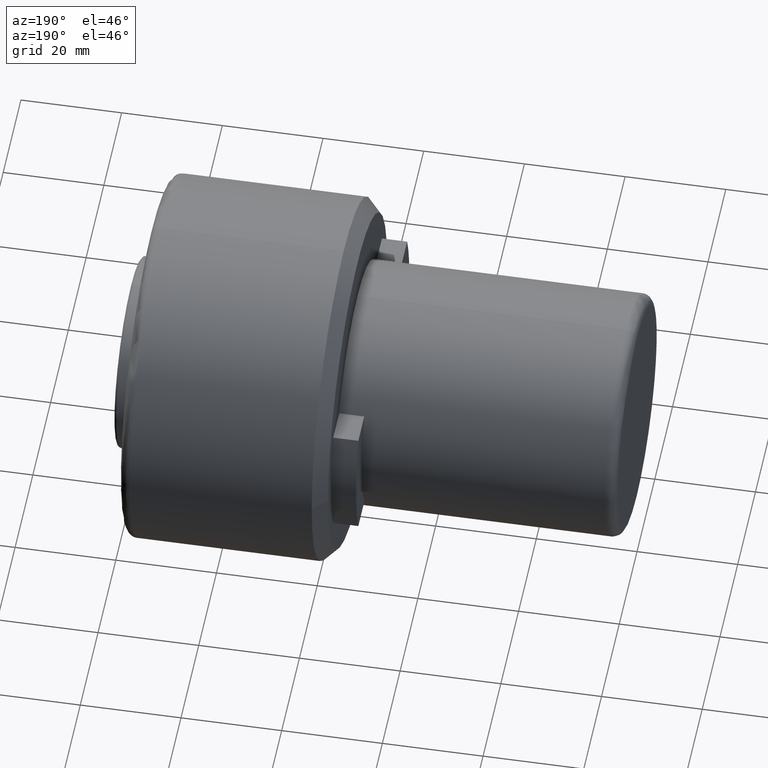
[diagram: clean part render]
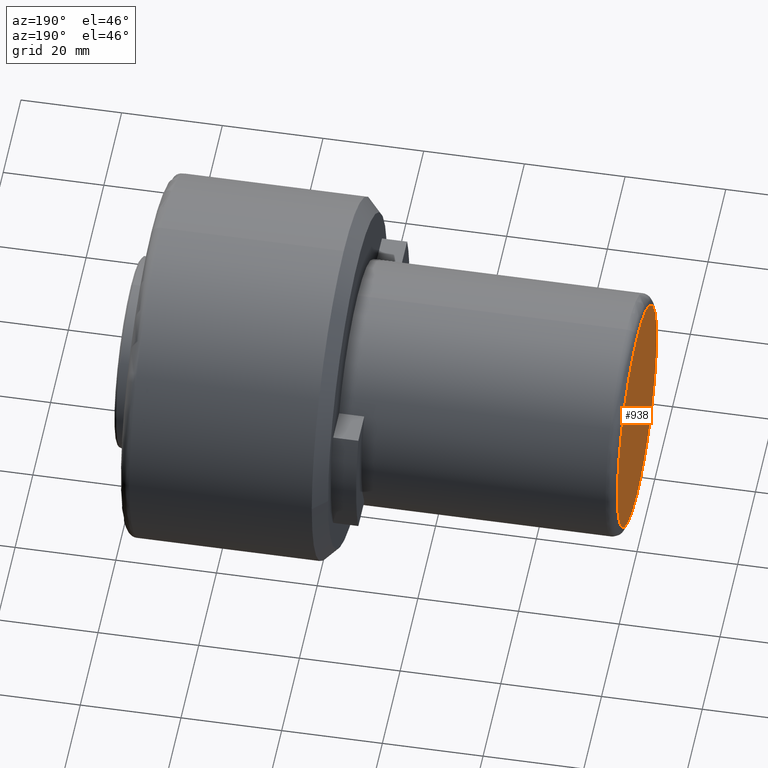
[diagram: same view with one face highlighted and labeled with its STEP entity id]
A machine part, auxiliary view. The second image highlights one B-rep face of the part: STEP entity #938.
In plain terms, the highlighted planar face has unit normal (-1, 0, 0).
Its self-contained STEP definition (entity closure, byte-faithful):
#167 = VERTEX_POINT ( 'NONE', #778 ) ;
#187 = CARTESIAN_POINT ( 'NONE',  ( 0.0000000000000000000, 0.0000000000000000000, -7.733975497063264400E-015 ) ) ;
#223 = DIRECTION ( 'NONE',  ( -1.000000000000000000, 0.0000000000000000000, 0.0000000000000000000 ) ) ;
#247 = EDGE_LOOP ( 'NONE', ( #1063, #455 ) ) ;
#288 = DIRECTION ( 'NONE',  ( 0.0000000000000000000, 0.0000000000000000000, 1.000000000000000000 ) ) ;
#292 = CIRCLE ( 'NONE', #1216, 22.00000000000000000 ) ;
#311 = AXIS2_PLACEMENT_3D ( 'NONE', #187, #944, #288 ) ;
#455 = ORIENTED_EDGE ( 'NONE', *, *, #898, .T. ) ;
#520 = FACE_OUTER_BOUND ( 'NONE', #247, .T. ) ;
#628 = PLANE ( 'NONE',  #644 ) ;
#644 = AXIS2_PLACEMENT_3D ( 'NONE', #1375, #1380, #734 ) ;
#734 = DIRECTION ( 'NONE',  ( 0.0000000000000000000, 0.0000000000000000000, 1.000000000000000000 ) ) ;
#778 = CARTESIAN_POINT ( 'NONE',  ( 0.0000000000000000000, 2.816687638038912400E-015, -22.00000000000000700 ) ) ;
#867 = CARTESIAN_POINT ( 'NONE',  ( 0.0000000000000000000, 0.0000000000000000000, -7.733975497063264400E-015 ) ) ;
#878 = CARTESIAN_POINT ( 'NONE',  ( 0.0000000000000000000, 0.0000000000000000000, 21.99999999999999300 ) ) ;
#898 = EDGE_CURVE ( 'NONE', #167, #1308, #1042, .T. ) ;
#938 = ADVANCED_FACE ( 'NONE', ( #520 ), #628, .T. ) ;
#944 = DIRECTION ( 'NONE',  ( -1.000000000000000000, 0.0000000000000000000, 0.0000000000000000000 ) ) ;
#976 = DIRECTION ( 'NONE',  ( 0.0000000000000000000, 0.0000000000000000000, 1.000000000000000000 ) ) ;
#1042 = CIRCLE ( 'NONE', #311, 22.00000000000000000 ) ;
#1063 = ORIENTED_EDGE ( 'NONE', *, *, #1180, .T. ) ;
#1180 = EDGE_CURVE ( 'NONE', #1308, #167, #292, .T. ) ;
#1216 = AXIS2_PLACEMENT_3D ( 'NONE', #867, #223, #976 ) ;
#1308 = VERTEX_POINT ( 'NONE', #878 ) ;
#1375 = CARTESIAN_POINT ( 'NONE',  ( 0.0000000000000000000, 21.60620000000000100, -21.60620000000000100 ) ) ;
#1380 = DIRECTION ( 'NONE',  ( -1.000000000000000000, 0.0000000000000000000, 0.0000000000000000000 ) ) ;